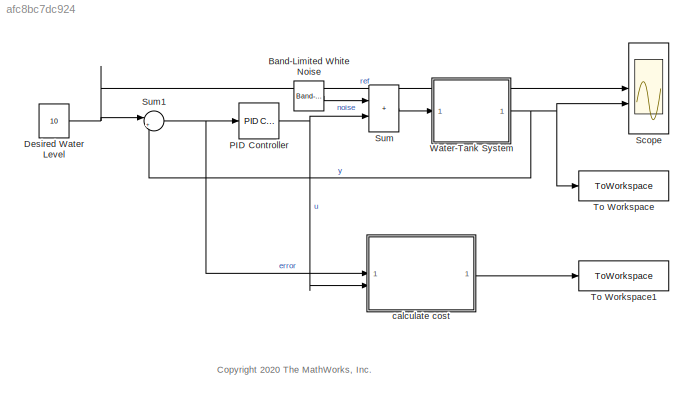
MODEL slx_afc8bc7dc924
KIND model
CONFIG AbsTol = auto
CONFIG EnableMultiTasking = on
CONFIG FixedStep = auto
CONFIG MaxStep = auto
CONFIG MinStep = auto
CONFIG RelTol = 1e-3
CONFIG SampleTimeConstraint = Unconstrained
CONFIG SolverName = ode45
CONFIG StartTime = 0.0
CONFIG StopTime = Tf
BLOCK [Reference] Band-Limited White Noise  REF=simulink/Sources/Band-Limited
White Noise
  SourceBlock = simulink/Sources/Band-Limited\nWhite Noise
  SourceType = Band-Limited White Noise.
BLOCK [Constant] Desired Water Level
  Value = 10
BLOCK [Reference] PID Controller  REF=slpidlib/PID Controller
  SourceBlock = slpidlib/PID Controller
  SourceType = PID 1dof
  Tag = PID1
BLOCK [Scope] Scope
  Floating = off
  NumInputPorts = 2
  ScopeSpecificationString = Simulink.scopes.TimeScopeBlockCfg('CurrentConfiguration', extmgr.ConfigurationSet(extmgr.Configuration('Core','General UI',true),extmgr.Configuration('Core','Source UI',true),extmgr.Configuration('Sources','WiredSimulink',true),extmgr.Configuration('Visuals','Time Domain',true,'SerializedDisplays',{struct('MinYLimReal','-0.132','MaxYLimReal','11.18803','YLabelReal','','MinYLimMag','0.00000','MaxYL...<+1357ch>
BLOCK [Sum] Sum
  IconShape = rectangular
BLOCK [Sum] Sum1
  Inputs = |+-
  SaturateOnIntegerOverflow = on
BLOCK [ToWorkspace] To Workspace
  FixptAsFi = on
  MaxDataPoints = inf
  SampleTime = -1
  SaveFormat = Timeseries
  VariableName = simout
BLOCK [ToWorkspace] To Workspace1
  FixptAsFi = on
  MaxDataPoints = inf
  SampleTime = -1
  SaveFormat = Timeseries
  VariableName = cost
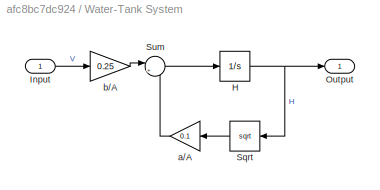
BLOCK [SubSystem] Water-Tank System
BLOCK [Integrator] Water-Tank System/H
  InitialCondition = 1
  LimitOutput = on
  LowerSaturationLimit = 0
BLOCK [Inport] Water-Tank System/Input
BLOCK [Outport] Water-Tank System/Output
  VectorParamsAs1DForOutWhenUnconnected = off
BLOCK [Sqrt] Water-Tank System/Sqrt
  NameLocation = top
  OutputSignalType = real
BLOCK [Sum] Water-Tank System/Sum
  Inputs = |+-
  SaturateOnIntegerOverflow = on
BLOCK [Gain] Water-Tank System/a//A
  Gain = 0.1
  OutDataTypeStr = Inherit: Same as input
  ParamDataTypeStr = Inherit: Same as input
  SaturateOnIntegerOverflow = on
BLOCK [Gain] Water-Tank System/b//A
  Gain = 0.25
  OutDataTypeStr = Inherit: Same as input
  ParamDataTypeStr = Inherit: Same as input
  SaturateOnIntegerOverflow = on
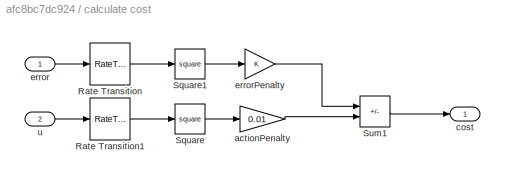
BLOCK [SubSystem] calculate cost
BLOCK [RateTransition] calculate cost/Rate Transition
  OutPortSampleTime = Ts
BLOCK [RateTransition] calculate cost/Rate Transition1
  OutPortSampleTime = Ts
BLOCK [Math] calculate cost/Square
  Operator = square
BLOCK [Math] calculate cost/Square1
  Operator = square
BLOCK [Sum] calculate cost/Sum1
  IconShape = rectangular
  Inputs = --
  OutDataTypeStr = double
BLOCK [Gain] calculate cost/actionPenalty
  Gain = 0.01
BLOCK [Outport] calculate cost/cost
  VectorParamsAs1DForOutWhenUnconnected = off
BLOCK [Inport] calculate cost/error
BLOCK [Gain] calculate cost/errorPenalty
BLOCK [Inport] calculate cost/u
  Port = 2
ANNOTATION (root): <copyright redacted>
LINE Band-Limited White Noise:1 -> Sum:1
NET Desired Water Level:1 -> Scope:1, Sum1:1
NET PID Controller:1 -> Sum:2, calculate cost:2
NET Sum1:1 -> PID Controller:1, calculate cost:1
LINE Sum:1 -> Water-Tank System:1
NET Water-Tank System/H:1 -> Water-Tank System/Output:1, Water-Tank System/Sqrt:1
LINE Water-Tank System/Input:1 -> Water-Tank System/b//A:1
LINE Water-Tank System/Sqrt:1 -> Water-Tank System/a//A:1
LINE Water-Tank System/Sum:1 -> Water-Tank System/H:1
LINE Water-Tank System/a//A:1 -> Water-Tank System/Sum:2
LINE Water-Tank System/b//A:1 -> Water-Tank System/Sum:1
NET Water-Tank System:1 -> Scope:2, Sum1:2, To Workspace:1
LINE calculate cost/Rate Transition1:1 -> calculate cost/Square:1
LINE calculate cost/Rate Transition:1 -> calculate cost/Square1:1
LINE calculate cost/Square1:1 -> calculate cost/errorPenalty:1
LINE calculate cost/Square:1 -> calculate cost/actionPenalty:1
LINE calculate cost/Sum1:1 -> calculate cost/cost:1
LINE calculate cost/actionPenalty:1 -> calculate cost/Sum1:2
LINE calculate cost/error:1 -> calculate cost/Rate Transition:1
LINE calculate cost/errorPenalty:1 -> calculate cost/Sum1:1
LINE calculate cost/u:1 -> calculate cost/Rate Transition1:1
LINE calculate cost:1 -> To Workspace1:1
note: NET lines group one-source signal fan-out (src -> all destinations, sorted); 1:1 wires keep LINE
